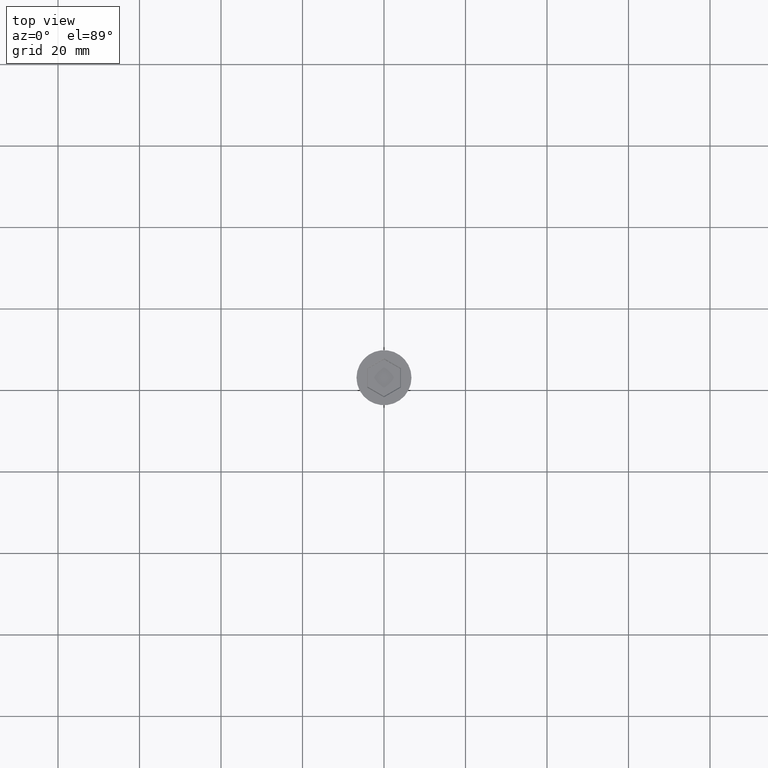
[diagram: clean part render]
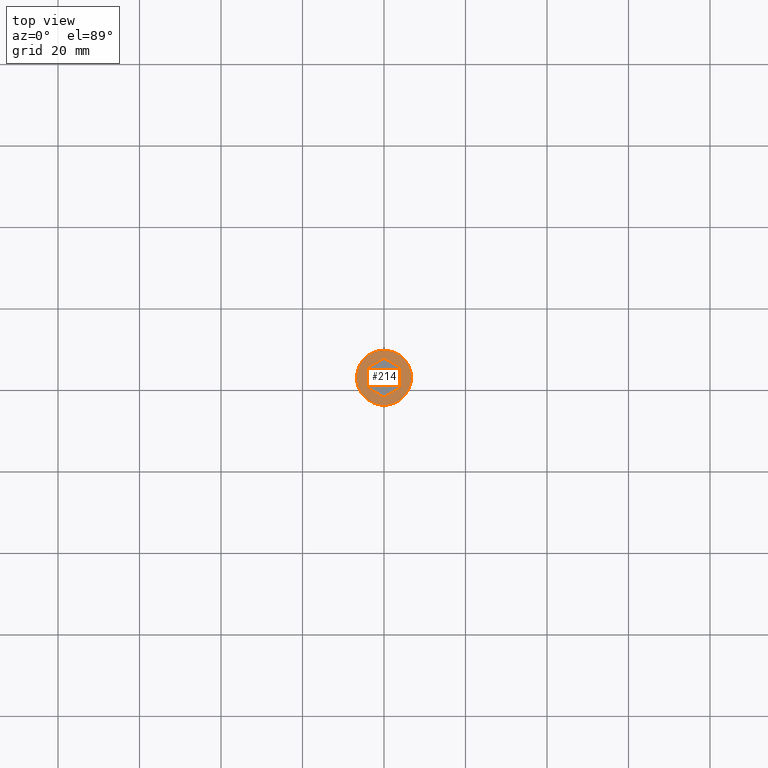
[diagram: same view with one face highlighted and labeled with its STEP entity id]
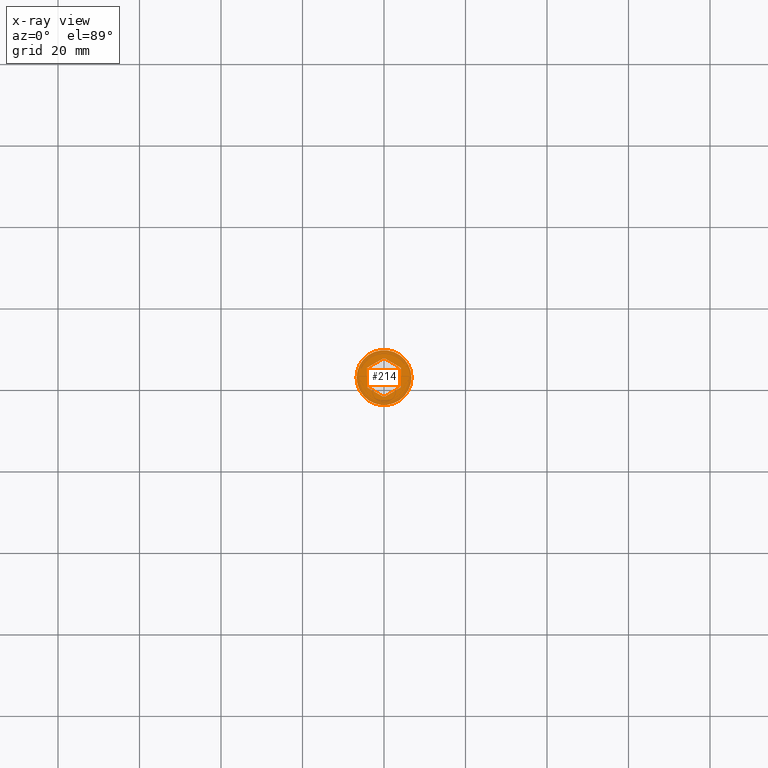
[diagram: x-ray of the same camera — body ghosted, the highlighted face saturated]
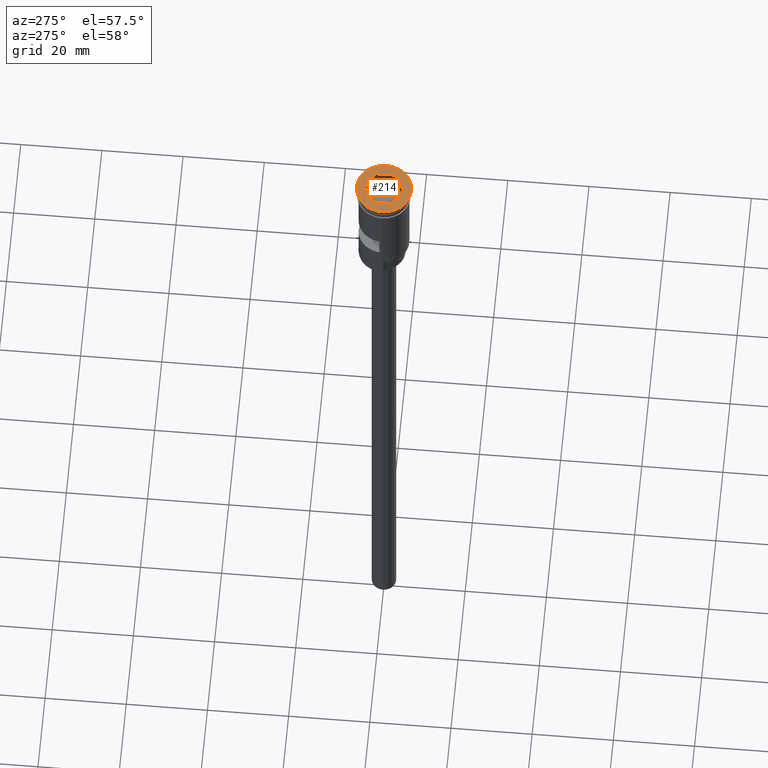
[diagram: same view with one face highlighted and labeled with its STEP entity id]
A machine part, top view. The second image highlights one B-rep face of the part: STEP entity #214.
The next image is the same camera in x-ray: the body ghosted, the highlighted face saturated — about 0% of this face is hidden behind the body in this view.
A second angle (auxiliary view) of the same face is appended — the face is thin or edge-on in the first view.
In plain terms, the highlighted planar face has unit normal (0, -0, 1).
Its self-contained STEP definition (entity closure, byte-faithful):
#18 = EDGE_CURVE ( 'NONE', #36, #448, #80, .T. ) ;
#36 = VERTEX_POINT ( 'NONE', #253 ) ;
#47 = DIRECTION ( 'NONE',  ( 0.000000000000000000, -0.000000000000000000, 1.000000000000000000 ) ) ;
#69 = ORIENTED_EDGE ( 'NONE', *, *, #585, .T. ) ;
#80 = LINE ( 'NONE', #201, #1420 ) ;
#95 = CIRCLE ( 'NONE', #854, 6.750000000000000000 ) ;
#112 = EDGE_CURVE ( 'NONE', #783, #325, #95, .T. ) ;
#115 = CARTESIAN_POINT ( 'NONE',  ( -6.750000000000000000, 8.266365894244634333E-16, 0.000000000000000000 ) ) ;
#140 = CARTESIAN_POINT ( 'NONE',  ( 0.000000000000000000, 0.000000000000000000, 0.000000000000000000 ) ) ;
#159 = CIRCLE ( 'NONE', #1471, 6.750000000000000000 ) ;
#171 = LINE ( 'NONE', #445, #1275 ) ;
#201 = CARTESIAN_POINT ( 'NONE',  ( 4.150000000000019895, -2.280533563299022681, 0.000000000000000000 ) ) ;
#206 = CARTESIAN_POINT ( 'NONE',  ( -4.050000000000011369, -2.453738644055928564, 0.000000000000000000 ) ) ;
#214 = ADVANCED_FACE ( 'NONE', ( #917, #285 ), #649, .T. ) ;
#231 = DIRECTION ( 'NONE',  ( 0.8660254037844385966, 0.4999999999999999445, 0.000000000000000000 ) ) ;
#253 = CARTESIAN_POINT ( 'NONE',  ( 4.150000000000021672, 2.396003617136959640, 0.000000000000000000 ) ) ;
#285 = FACE_OUTER_BOUND ( 'NONE', #960, .T. ) ;
#293 = CARTESIAN_POINT ( 'NONE',  ( 4.150000000000019895, -2.396003617136961417, 0.000000000000000000 ) ) ;
#325 = VERTEX_POINT ( 'NONE', #1056 ) ;
#388 = DIRECTION ( 'NONE',  ( 0.8660254037844387076, -0.4999999999999998335, 0.000000000000000000 ) ) ;
#397 = CARTESIAN_POINT ( 'NONE',  ( -4.150000000000021672, -2.396003617136959640, 0.000000000000000000 ) ) ;
#420 = VECTOR ( 'NONE', #832, 999.9999999999998863 ) ;
#445 = CARTESIAN_POINT ( 'NONE',  ( -4.150000000000021672, 2.280533563299020905, 0.000000000000000000 ) ) ;
#448 = VERTEX_POINT ( 'NONE', #293 ) ;
#451 = LINE ( 'NONE', #1443, #1144 ) ;
#465 = EDGE_CURVE ( 'NONE', #325, #783, #159, .T. ) ;
#506 = VECTOR ( 'NONE', #388, 1000.000000000000000 ) ;
#522 = CARTESIAN_POINT ( 'NONE',  ( -4.614111465591404171E-16, -4.792007234273920169, 0.000000000000000000 ) ) ;
#543 = ORIENTED_EDGE ( 'NONE', *, *, #1532, .T. ) ;
#585 = EDGE_CURVE ( 'NONE', #448, #899, #451, .T. ) ;
#594 = EDGE_CURVE ( 'NONE', #899, #1346, #1457, .T. ) ;
#600 = CARTESIAN_POINT ( 'NONE',  ( -1.044795037522899886E-15, 4.792007234273919281, 0.000000000000000000 ) ) ;
#605 = AXIS2_PLACEMENT_3D ( 'NONE', #1293, #47, #1051 ) ;
#632 = DIRECTION ( 'NONE',  ( 1.000000000000000000, 0.000000000000000000, 0.000000000000000000 ) ) ;
#642 = ORIENTED_EDGE ( 'NONE', *, *, #112, .T. ) ;
#649 = PLANE ( 'NONE',  #605 ) ;
#669 = DIRECTION ( 'NONE',  ( 0.000000000000000000, 1.000000000000000000, 0.000000000000000000 ) ) ;
#698 = DIRECTION ( 'NONE',  ( -0.8660254037844387076, -0.4999999999999998890, 0.000000000000000000 ) ) ;
#729 = LINE ( 'NONE', #1088, #1173 ) ;
#760 = ORIENTED_EDGE ( 'NONE', *, *, #465, .T. ) ;
#783 = VERTEX_POINT ( 'NONE', #115 ) ;
#832 = DIRECTION ( 'NONE',  ( -0.8660254037844385966, 0.5000000000000002220, 0.000000000000000000 ) ) ;
#840 = ORIENTED_EDGE ( 'NONE', *, *, #18, .T. ) ;
#854 = AXIS2_PLACEMENT_3D ( 'NONE', #140, #1256, #632 ) ;
#899 = VERTEX_POINT ( 'NONE', #522 ) ;
#913 = CARTESIAN_POINT ( 'NONE',  ( 4.050000000000011369, 2.453738644055928564, 0.000000000000000000 ) ) ;
#916 = DIRECTION ( 'NONE',  ( 1.000000000000000000, 0.000000000000000000, 0.000000000000000000 ) ) ;
#917 = FACE_BOUND ( 'NONE', #1291, .T. ) ;
#960 = EDGE_LOOP ( 'NONE', ( #760, #642 ) ) ;
#1051 = DIRECTION ( 'NONE',  ( 1.000000000000000000, 0.000000000000000000, 0.000000000000000000 ) ) ;
#1055 = ORIENTED_EDGE ( 'NONE', *, *, #594, .T. ) ;
#1056 = CARTESIAN_POINT ( 'NONE',  ( 6.750000000000000000, 0.000000000000000000, 0.000000000000000000 ) ) ;
#1088 = CARTESIAN_POINT ( 'NONE',  ( -0.1000000000000110661, 4.734272207354949913, 0.000000000000000000 ) ) ;
#1109 = VERTEX_POINT ( 'NONE', #1416 ) ;
#1144 = VECTOR ( 'NONE', #698, 1000.000000000000000 ) ;
#1173 = VECTOR ( 'NONE', #231, 1000.000000000000114 ) ;
#1213 = DIRECTION ( 'NONE',  ( -3.803328098068756548E-16, -1.000000000000000000, 0.000000000000000000 ) ) ;
#1256 = DIRECTION ( 'NONE',  ( -0.000000000000000000, -0.000000000000000000, 1.000000000000000000 ) ) ;
#1275 = VECTOR ( 'NONE', #669, 1000.000000000000000 ) ;
#1291 = EDGE_LOOP ( 'NONE', ( #1055, #543, #1582, #1568, #840, #69 ) ) ;
#1293 = CARTESIAN_POINT ( 'NONE',  ( 0.000000000000000000, 0.000000000000000000, 0.000000000000000000 ) ) ;
#1301 = CARTESIAN_POINT ( 'NONE',  ( 0.000000000000000000, 0.000000000000000000, 0.000000000000000000 ) ) ;
#1346 = VERTEX_POINT ( 'NONE', #397 ) ;
#1380 = EDGE_CURVE ( 'NONE', #1562, #36, #1527, .T. ) ;
#1416 = CARTESIAN_POINT ( 'NONE',  ( -4.150000000000021672, 2.396003617136960084, 0.000000000000000000 ) ) ;
#1420 = VECTOR ( 'NONE', #1213, 1000.000000000000000 ) ;
#1443 = CARTESIAN_POINT ( 'NONE',  ( 0.1000000000000099976, -4.734272207354950801, 0.000000000000000000 ) ) ;
#1457 = LINE ( 'NONE', #206, #420 ) ;
#1471 = AXIS2_PLACEMENT_3D ( 'NONE', #1301, #1535, #916 ) ;
#1527 = LINE ( 'NONE', #913, #506 ) ;
#1532 = EDGE_CURVE ( 'NONE', #1346, #1109, #171, .T. ) ;
#1535 = DIRECTION ( 'NONE',  ( -0.000000000000000000, -0.000000000000000000, 1.000000000000000000 ) ) ;
#1562 = VERTEX_POINT ( 'NONE', #600 ) ;
#1568 = ORIENTED_EDGE ( 'NONE', *, *, #1380, .T. ) ;
#1582 = ORIENTED_EDGE ( 'NONE', *, *, #1605, .T. ) ;
#1605 = EDGE_CURVE ( 'NONE', #1109, #1562, #729, .T. ) ;